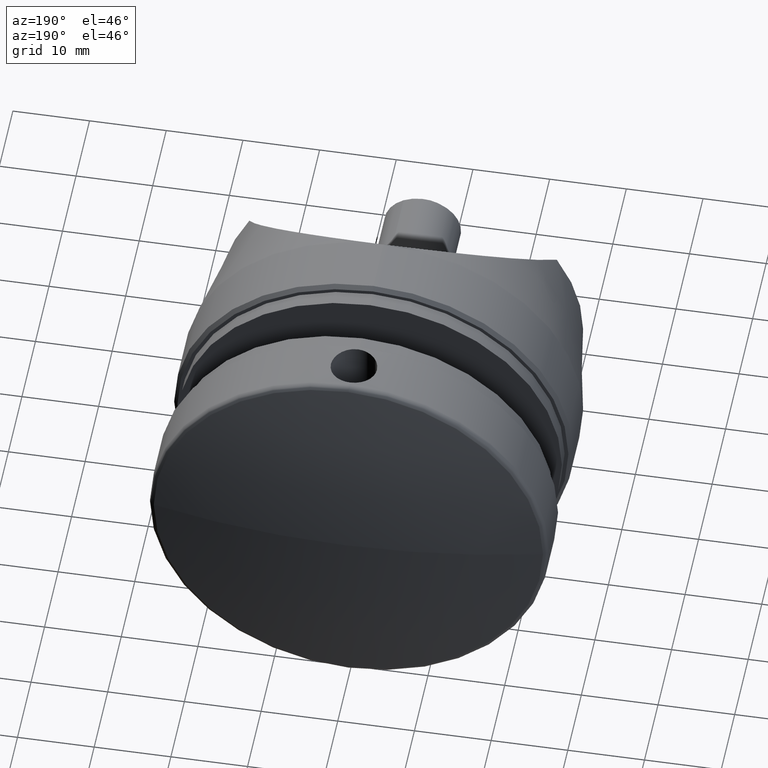
[diagram: clean part render]
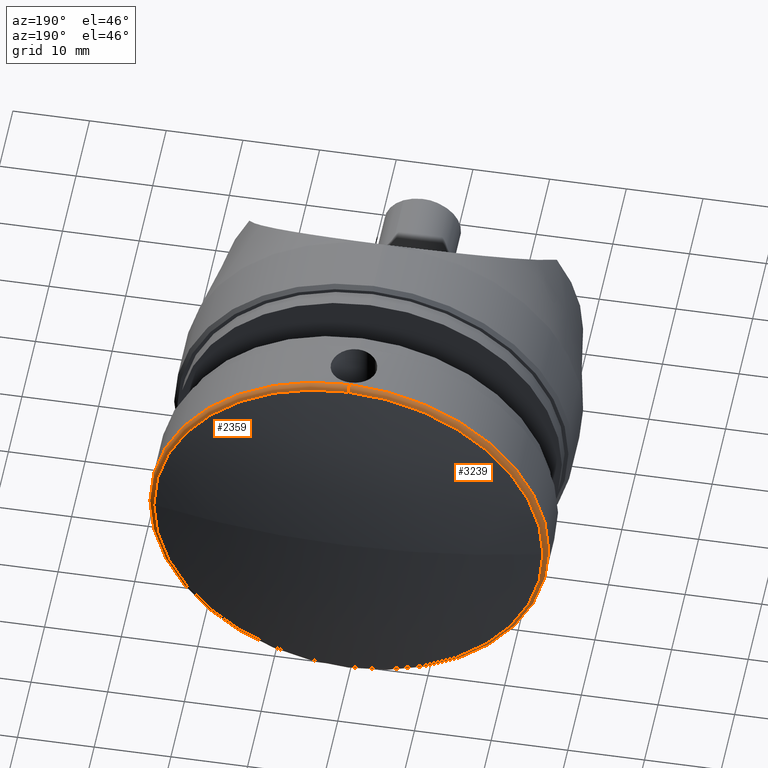
[diagram: same view with one multi-face feature highlighted, each face labeled with its STEP entity id]
A machine part, auxiliary view. The highlighted faces form ONE feature: a constant-radius fillet chain: 2 tangent blend faces with common blend radius 0.8 mm. The faces share edges in the B-rep.
Their STEP definitions:
[1] entity #3239 (Torus):
#7 = DIRECTION ( 'NONE',  ( -0.000000000000000000, -1.000000000000000000, -0.000000000000000000 ) ) ;
#165 = VERTEX_POINT ( 'NONE', #3561 ) ;
#490 = TOROIDAL_SURFACE ( 'NONE', #9556, 25.19999999999999929, 0.7999999999999949374 ) ;
#680 = AXIS2_PLACEMENT_3D ( 'NONE', #9073, #11690, #10452 ) ;
#2102 = DIRECTION ( 'NONE',  ( -0.000000000000000000, -1.000000000000000000, -0.000000000000000000 ) ) ;
#2765 = ORIENTED_EDGE ( 'NONE', *, *, #4731, .T. ) ;
#2934 = DIRECTION ( 'NONE',  ( -1.224646799147353947E-16, 0.000000000000000000, -1.000000000000000000 ) ) ;
#3239 = ADVANCED_FACE ( 'NONE', ( #8550 ), #490, .T. ) ;
#3561 = CARTESIAN_POINT ( 'NONE',  ( -25.37783004998529535, 16.14368109908169302, 3.107887834002000330E-15 ) ) ;
#3593 = DIRECTION ( 'NONE',  ( -0.000000000000000000, -1.000000000000000000, -0.000000000000000000 ) ) ;
#3693 = CIRCLE ( 'NONE', #14985, 0.7999999999999951594 ) ;
#4210 = EDGE_CURVE ( 'NONE', #8148, #7792, #12138, .T. ) ;
#4220 = DIRECTION ( 'NONE',  ( 1.000000000000000000, 0.000000000000000000, -1.224646799147353207E-16 ) ) ;
#4559 = ORIENTED_EDGE ( 'NONE', *, *, #12759, .T. ) ;
#4731 = EDGE_CURVE ( 'NONE', #12275, #165, #13347, .T. ) ;
#5367 = CARTESIAN_POINT ( 'NONE',  ( 0.000000000000000000, 15.36369618043119800, 0.000000000000000000 ) ) ;
#5496 = ORIENTED_EDGE ( 'NONE', *, *, #4210, .F. ) ;
#5549 = DIRECTION ( 'NONE',  ( 0.000000000000000000, 0.000000000000000000, -1.000000000000000000 ) ) ;
#5585 = CARTESIAN_POINT ( 'NONE',  ( 0.000000000000000000, 16.14368109908169302, 0.000000000000000000 ) ) ;
#5676 = AXIS2_PLACEMENT_3D ( 'NONE', #15245, #2102, #8707 ) ;
#5775 = EDGE_LOOP ( 'NONE', ( #11181, #2765, #8739, #4559, #5496 ) ) ;
#6317 = CARTESIAN_POINT ( 'NONE',  ( 0.000000000000000000, 15.36369618043119800, -25.19999999999999929 ) ) ;
#7176 = AXIS2_PLACEMENT_3D ( 'NONE', #6317, #9012, #11630 ) ;
#7792 = VERTEX_POINT ( 'NONE', #14339 ) ;
#8008 = VERTEX_POINT ( 'NONE', #14740 ) ;
#8148 = VERTEX_POINT ( 'NONE', #12986 ) ;
#8550 = FACE_OUTER_BOUND ( 'NONE', #5775, .T. ) ;
#8707 = DIRECTION ( 'NONE',  ( 0.000000000000000000, 0.000000000000000000, -1.000000000000000000 ) ) ;
#8739 = ORIENTED_EDGE ( 'NONE', *, *, #14107, .T. ) ;
#9012 = DIRECTION ( 'NONE',  ( -1.000000000000000000, 0.000000000000000000, 0.000000000000000000 ) ) ;
#9073 = CARTESIAN_POINT ( 'NONE',  ( 0.000000000000000000, 15.36369618043119800, 0.000000000000000000 ) ) ;
#9317 = CIRCLE ( 'NONE', #7176, 0.7999999999999951594 ) ;
#9556 = AXIS2_PLACEMENT_3D ( 'NONE', #5367, #7, #5549 ) ;
#10452 = DIRECTION ( 'NONE',  ( 0.000000000000000000, 0.000000000000000000, -1.000000000000000000 ) ) ;
#11181 = ORIENTED_EDGE ( 'NONE', *, *, #14519, .F. ) ;
#11299 = CIRCLE ( 'NONE', #5676, 25.37783004998528824 ) ;
#11630 = DIRECTION ( 'NONE',  ( 0.000000000000000000, 0.000000000000000000, 1.000000000000000000 ) ) ;
#11690 = DIRECTION ( 'NONE',  ( -0.000000000000000000, -1.000000000000000000, -0.000000000000000000 ) ) ;
#12138 = CIRCLE ( 'NONE', #680, 25.99999999999999645 ) ;
#12275 = VERTEX_POINT ( 'NONE', #12408 ) ;
#12408 = CARTESIAN_POINT ( 'NONE',  ( 3.145984755892558472E-15, 16.14368109908169302, 25.37783004998528824 ) ) ;
#12759 = EDGE_CURVE ( 'NONE', #8008, #7792, #9317, .T. ) ;
#12986 = CARTESIAN_POINT ( 'NONE',  ( 3.184081677783118191E-15, 15.36369618043119800, 25.99999999999999645 ) ) ;
#13347 = CIRCLE ( 'NONE', #13602, 25.37783004998528824 ) ;
#13602 = AXIS2_PLACEMENT_3D ( 'NONE', #5585, #3593, #14103 ) ;
#14103 = DIRECTION ( 'NONE',  ( 0.000000000000000000, 0.000000000000000000, -1.000000000000000000 ) ) ;
#14107 = EDGE_CURVE ( 'NONE', #165, #8008, #11299, .T. ) ;
#14339 = CARTESIAN_POINT ( 'NONE',  ( 0.000000000000000000, 15.36369618043119800, -25.99999999999999645 ) ) ;
#14373 = CARTESIAN_POINT ( 'NONE',  ( 3.086109933851330151E-15, 15.36369618043119800, 25.19999999999999929 ) ) ;
#14519 = EDGE_CURVE ( 'NONE', #12275, #8148, #3693, .T. ) ;
#14740 = CARTESIAN_POINT ( 'NONE',  ( 0.000000000000000000, 16.14368109908169302, -25.37783004998528824 ) ) ;
#14985 = AXIS2_PLACEMENT_3D ( 'NONE', #14373, #4220, #2934 ) ;
#15245 = CARTESIAN_POINT ( 'NONE',  ( 0.000000000000000000, 16.14368109908169302, 0.000000000000000000 ) ) ;
[2] entity #2359 (Torus):
#367 = ORIENTED_EDGE ( 'NONE', *, *, #6054, .T. ) ;
#1432 = AXIS2_PLACEMENT_3D ( 'NONE', #15439, #6260, #4998 ) ;
#2359 = ADVANCED_FACE ( 'NONE', ( #14309 ), #10006, .T. ) ;
#2934 = DIRECTION ( 'NONE',  ( -1.224646799147353947E-16, 0.000000000000000000, -1.000000000000000000 ) ) ;
#3516 = CARTESIAN_POINT ( 'NONE',  ( 0.000000000000000000, 16.14368109908169302, 0.000000000000000000 ) ) ;
#3565 = ORIENTED_EDGE ( 'NONE', *, *, #9973, .T. ) ;
#3693 = CIRCLE ( 'NONE', #14985, 0.7999999999999951594 ) ;
#4220 = DIRECTION ( 'NONE',  ( 1.000000000000000000, 0.000000000000000000, -1.224646799147353207E-16 ) ) ;
#4342 = CIRCLE ( 'NONE', #1432, 25.99999999999999645 ) ;
#4345 = EDGE_LOOP ( 'NONE', ( #3565, #7431, #16427, #15234, #367 ) ) ;
#4998 = DIRECTION ( 'NONE',  ( 0.000000000000000000, 0.000000000000000000, -1.000000000000000000 ) ) ;
#5820 = DIRECTION ( 'NONE',  ( -0.000000000000000000, -1.000000000000000000, -0.000000000000000000 ) ) ;
#6054 = EDGE_CURVE ( 'NONE', #8008, #9365, #11704, .T. ) ;
#6260 = DIRECTION ( 'NONE',  ( -0.000000000000000000, -1.000000000000000000, -0.000000000000000000 ) ) ;
#6317 = CARTESIAN_POINT ( 'NONE',  ( 0.000000000000000000, 15.36369618043119800, -25.19999999999999929 ) ) ;
#7176 = AXIS2_PLACEMENT_3D ( 'NONE', #6317, #9012, #11630 ) ;
#7431 = ORIENTED_EDGE ( 'NONE', *, *, #14519, .T. ) ;
#7792 = VERTEX_POINT ( 'NONE', #14339 ) ;
#8008 = VERTEX_POINT ( 'NONE', #14740 ) ;
#8148 = VERTEX_POINT ( 'NONE', #12986 ) ;
#9012 = DIRECTION ( 'NONE',  ( -1.000000000000000000, 0.000000000000000000, 0.000000000000000000 ) ) ;
#9317 = CIRCLE ( 'NONE', #7176, 0.7999999999999951594 ) ;
#9365 = VERTEX_POINT ( 'NONE', #12327 ) ;
#9693 = CARTESIAN_POINT ( 'NONE',  ( 0.000000000000000000, 15.36369618043119800, 0.000000000000000000 ) ) ;
#9775 = DIRECTION ( 'NONE',  ( 0.000000000000000000, 0.000000000000000000, -1.000000000000000000 ) ) ;
#9973 = EDGE_CURVE ( 'NONE', #9365, #12275, #10909, .T. ) ;
#10006 = TOROIDAL_SURFACE ( 'NONE', #16141, 25.19999999999999929, 0.7999999999999949374 ) ;
#10909 = CIRCLE ( 'NONE', #13623, 25.37783004998528824 ) ;
#11630 = DIRECTION ( 'NONE',  ( 0.000000000000000000, 0.000000000000000000, 1.000000000000000000 ) ) ;
#11704 = CIRCLE ( 'NONE', #16159, 25.37783004998528824 ) ;
#12275 = VERTEX_POINT ( 'NONE', #12408 ) ;
#12314 = DIRECTION ( 'NONE',  ( -0.000000000000000000, -1.000000000000000000, -0.000000000000000000 ) ) ;
#12327 = CARTESIAN_POINT ( 'NONE',  ( 25.37783004998529535, 16.14368109908169302, 0.000000000000000000 ) ) ;
#12408 = CARTESIAN_POINT ( 'NONE',  ( 3.145984755892558472E-15, 16.14368109908169302, 25.37783004998528824 ) ) ;
#12705 = DIRECTION ( 'NONE',  ( -0.000000000000000000, -1.000000000000000000, -0.000000000000000000 ) ) ;
#12759 = EDGE_CURVE ( 'NONE', #8008, #7792, #9317, .T. ) ;
#12942 = DIRECTION ( 'NONE',  ( 0.000000000000000000, 0.000000000000000000, -1.000000000000000000 ) ) ;
#12986 = CARTESIAN_POINT ( 'NONE',  ( 3.184081677783118191E-15, 15.36369618043119800, 25.99999999999999645 ) ) ;
#13548 = EDGE_CURVE ( 'NONE', #7792, #8148, #4342, .T. ) ;
#13623 = AXIS2_PLACEMENT_3D ( 'NONE', #14982, #5820, #9775 ) ;
#14309 = FACE_OUTER_BOUND ( 'NONE', #4345, .T. ) ;
#14339 = CARTESIAN_POINT ( 'NONE',  ( 0.000000000000000000, 15.36369618043119800, -25.99999999999999645 ) ) ;
#14373 = CARTESIAN_POINT ( 'NONE',  ( 3.086109933851330151E-15, 15.36369618043119800, 25.19999999999999929 ) ) ;
#14519 = EDGE_CURVE ( 'NONE', #12275, #8148, #3693, .T. ) ;
#14740 = CARTESIAN_POINT ( 'NONE',  ( 0.000000000000000000, 16.14368109908169302, -25.37783004998528824 ) ) ;
#14982 = CARTESIAN_POINT ( 'NONE',  ( 0.000000000000000000, 16.14368109908169302, 0.000000000000000000 ) ) ;
#14985 = AXIS2_PLACEMENT_3D ( 'NONE', #14373, #4220, #2934 ) ;
#15234 = ORIENTED_EDGE ( 'NONE', *, *, #12759, .F. ) ;
#15369 = DIRECTION ( 'NONE',  ( 0.000000000000000000, 0.000000000000000000, -1.000000000000000000 ) ) ;
#15439 = CARTESIAN_POINT ( 'NONE',  ( 0.000000000000000000, 15.36369618043119800, 0.000000000000000000 ) ) ;
#16141 = AXIS2_PLACEMENT_3D ( 'NONE', #9693, #12314, #12942 ) ;
#16159 = AXIS2_PLACEMENT_3D ( 'NONE', #3516, #12705, #15369 ) ;
#16427 = ORIENTED_EDGE ( 'NONE', *, *, #13548, .F. ) ;